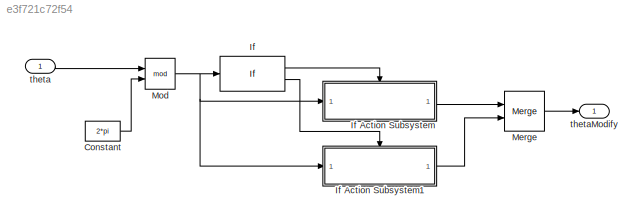
MODEL slx_e3f721c72f54
KIND model
CONFIG AbsTol = auto
CONFIG EnableMultiTasking = off
CONFIG FixedStep = 0.1
CONFIG MaxStep = auto
CONFIG MinStep = auto
CONFIG RelTol = 1e-3
CONFIG SampleTimeConstraint = Unconstrained
CONFIG Solver = FixedStepAuto
CONFIG SolverName = FixedStepAuto
CONFIG StartTime = 0.0
CONFIG StopTime = 10.0
BLOCK [Constant] Constant
  Value = 2*pi
BLOCK [If] If
  IfExpression = u1 > pi
  Ports = [1, 2]
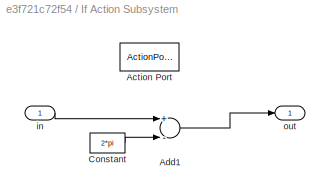
BLOCK [SubSystem] If Action Subsystem
  Ports = [1, 1, 0, 0, 0, 0, 0, 1]
  RequestExecContextInheritance = off
  TreatAsAtomicUnit = on
BLOCK [ActionPort] If Action Subsystem/Action Port
  ActionPortLabel = if(u1 > pi)
BLOCK [Sum] If Action Subsystem/Add1
  InputSameDT = off
  Inputs = +-
  OutDataTypeStr = Inherit: Inherit via internal rule
  Ports = [2, 1]
  SaturateOnIntegerOverflow = off
BLOCK [Constant] If Action Subsystem/Constant
  Value = 2*pi
BLOCK [Inport] If Action Subsystem/in
  IconDisplay = Port number
BLOCK [Outport] If Action Subsystem/out
  IconDisplay = Port number
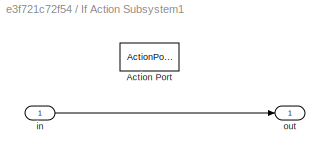
BLOCK [SubSystem] If Action Subsystem1
  Ports = [1, 1, 0, 0, 0, 0, 0, 1]
  RequestExecContextInheritance = off
  TreatAsAtomicUnit = on
BLOCK [ActionPort] If Action Subsystem1/Action Port
  ActionPortLabel = else
BLOCK [Inport] If Action Subsystem1/in
  IconDisplay = Port number
BLOCK [Outport] If Action Subsystem1/out
  IconDisplay = Port number
BLOCK [Merge] Merge
  Ports = [2, 1]
BLOCK [Math] Mod
  Operator = mod
  Ports = [2, 1]
  SignedPower = off
BLOCK [Inport] theta
  IconDisplay = Port number
  OutDataTypeStr = double
  PortDimensions = 1
  SamplingMode = Sample based
  SignalType = real
BLOCK [Outport] thetaModify
  IconDisplay = Port number
LINE Constant:1 -> Mod:2
LINE If Action Subsystem/Add1:1 -> If Action Subsystem/out:1
LINE If Action Subsystem/Constant:1 -> If Action Subsystem/Add1:2
LINE If Action Subsystem/in:1 -> If Action Subsystem/Add1:1
LINE If Action Subsystem1/in:1 -> If Action Subsystem1/out:1
LINE If Action Subsystem1:1 -> Merge:2
LINE If Action Subsystem:1 -> Merge:1
LINE If:1 -> If Action Subsystem:ifaction
LINE If:2 -> If Action Subsystem1:ifaction
LINE Merge:1 -> thetaModify:1
NET Mod:1 -> If Action Subsystem1:1, If Action Subsystem:1, If:1
LINE theta:1 -> Mod:1
note: NET lines group one-source signal fan-out (src -> all destinations, sorted); 1:1 wires keep LINE
